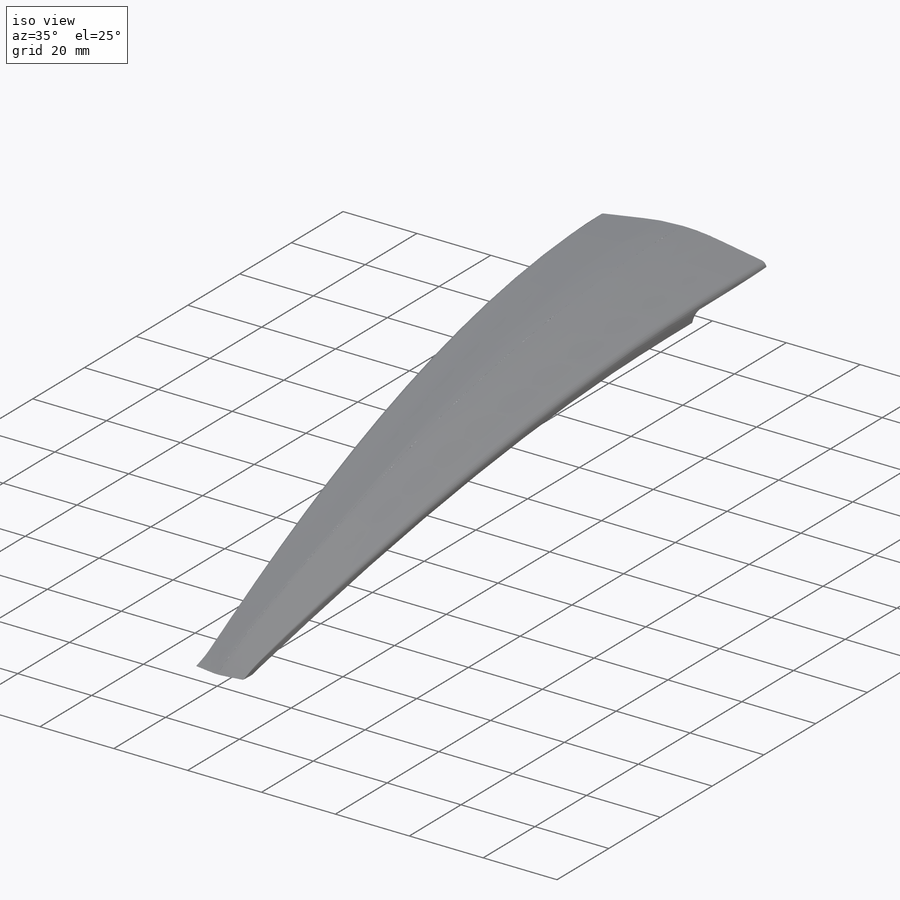
[diagram: iso view]
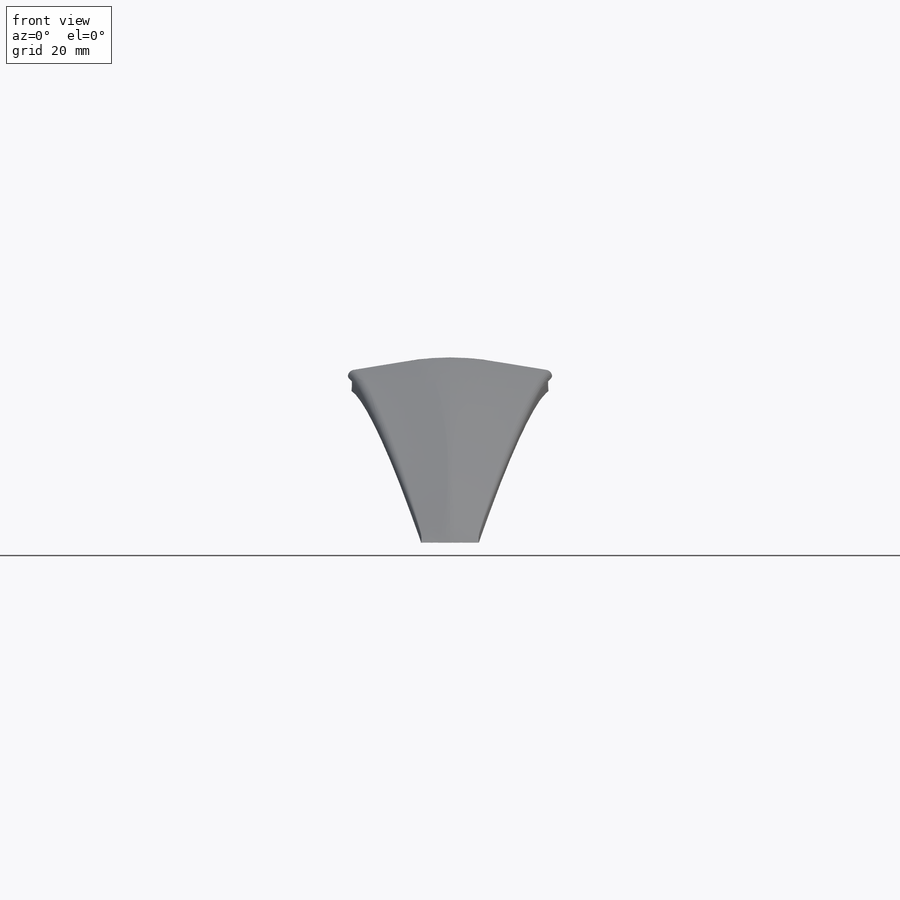
[diagram: front view]
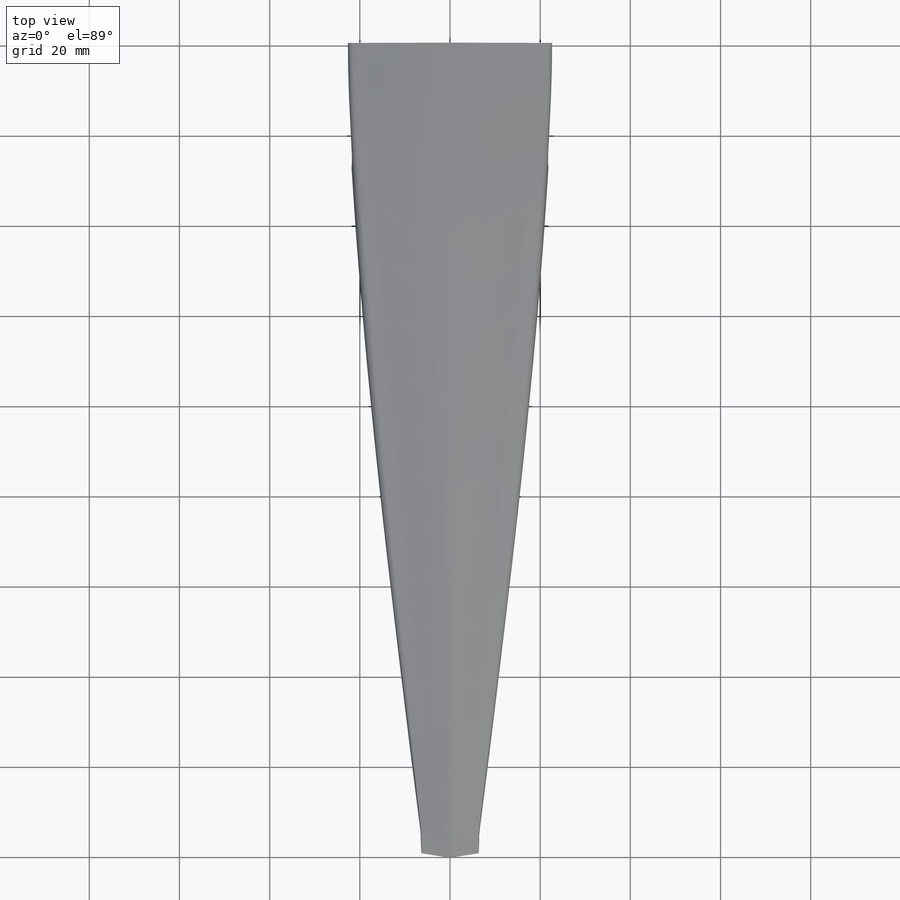
[diagram: top view]
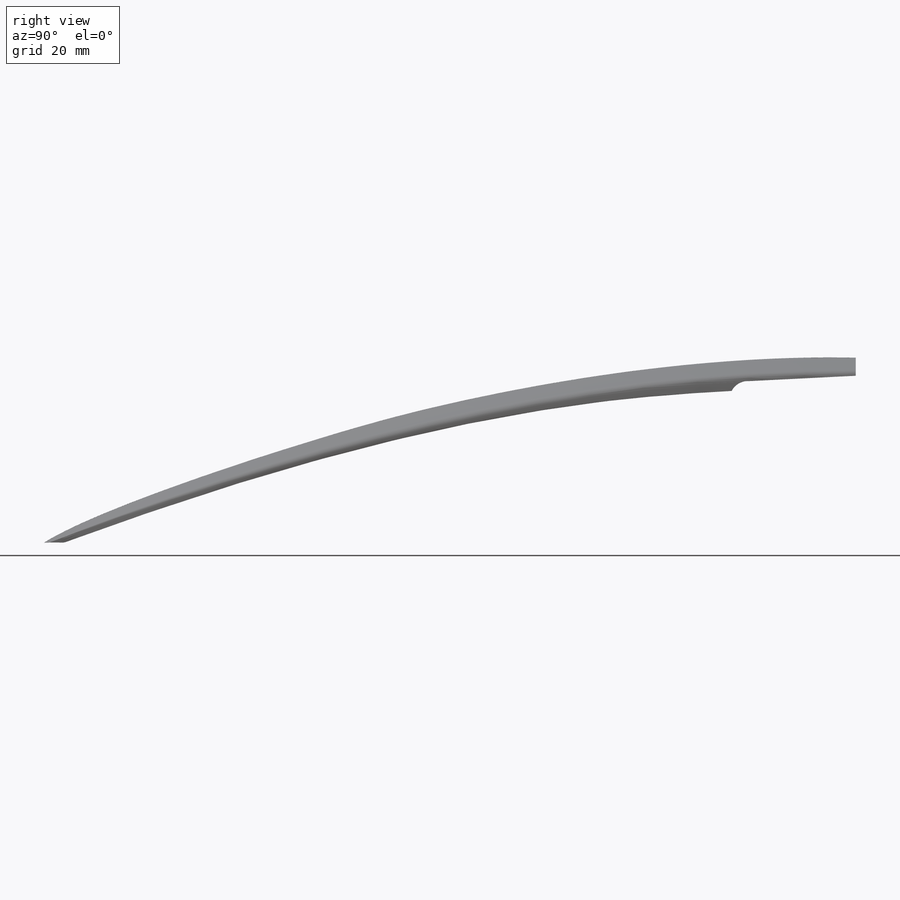
[diagram: right view]
SOLIDWORKS PART (.sldprt)
format: sldprt  version: not decoded by parser v0  size: 503,296 bytes
history: native  units: mm
features: sketch x13, material x1, cut_extrude x1, mirror x1 (+11 scaffold rows collapsed)
feature tree (27):
  scaffold x11  (default folders/planes/origin — collapsed)
  material  "ABS"
  sketch  "Sketch1"  dims[c1.D1=60.0mm c1.D3=1.5mm c1.D2=41.0mm c1.D4=~6.167303mm c2.D4=75.0deg c2.D5=23.0mm c2.D6=6.0mm c2.D7=3.5mm c3.D6=0.35mm]
  sketch  "Sketch2"  dims[c1.D6=1.1mm c1.D7=9.0mm c1.D1=180.0mm c1.D2=7.0mm c1.D3=6.5mm c1.D4=3.5mm c1.D5=0.35mm c2.D6=~6.04804mm c2.D8=~0.676207mm]
  sketch  "Sketch3"  dims[D2=2.25mm D1=2.0mm]
  sketch  "Sketch7"
  sketch  "Sketch6"  dims[D1=2.25mm]
  sketch  "Sketch9"
  sketch  "3DSketch6"  dims[c1.D4=~3.432814mm c2.D4=~3.432814mm c3.D4=~3.432814mm c4.D4=~3.432814mm c5.D4=~3.432814mm c6.D4=~3.432814mm c7.D4=~3.432814mm c8.D4=~3.432814mm c9.D4=~3.432814mm c9.D1=~1.229098mm c10.D1=~78.524911deg c10.D4=79.0deg c10.D2=~3.432814mm c10.D3=~8.581319mm c11.D4=~13.638396deg]
  sketch  "3DSketch5"  dims[D1=~5.902061mm]
  sketch  "3DSketch3"  dims[D1=1.5mm D2=0.15mm]
  sketch  "3DSketch7"
  sketch  "Sketch8"  dims[c1.D2=~8.095348mm c1.D1=~37.170345mm c2.D1=~87.121896deg c3.D1=0.01mm]
  sketch  "Sketch10"
  sketch  "Sketch11"
  cut_extrude  "Cut-Extrude1"  [1 undecoded]
  mirror  "Mirror1"
decode coverage: 8 of 15 modeling features carry decoded parameters
note: ~ marks probable driven/reference dimensions
note: 1 parameter value undecoded
note: suppression state not decoded; provenance and decode notes live in map.json
